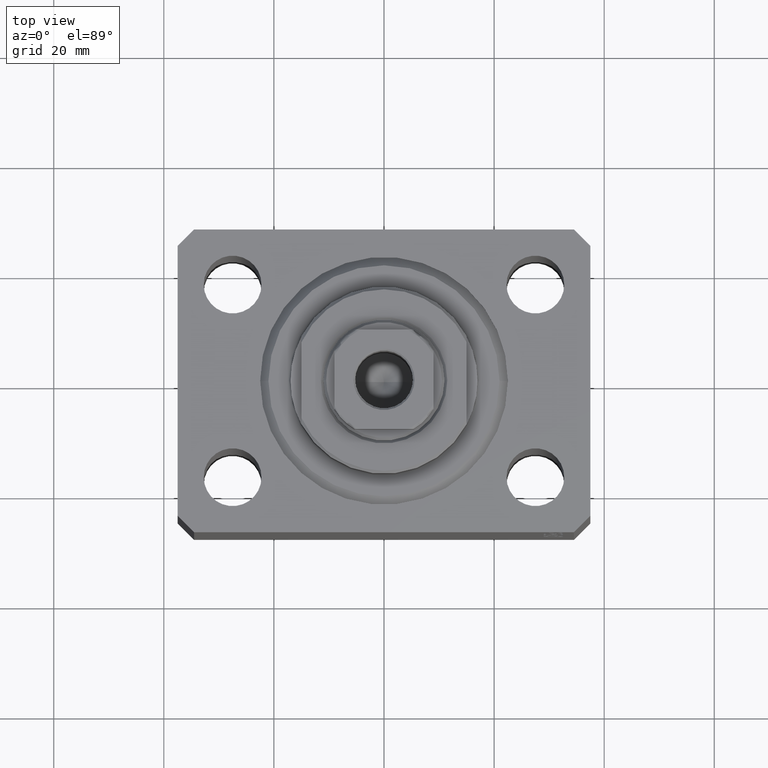
[diagram: clean part render]
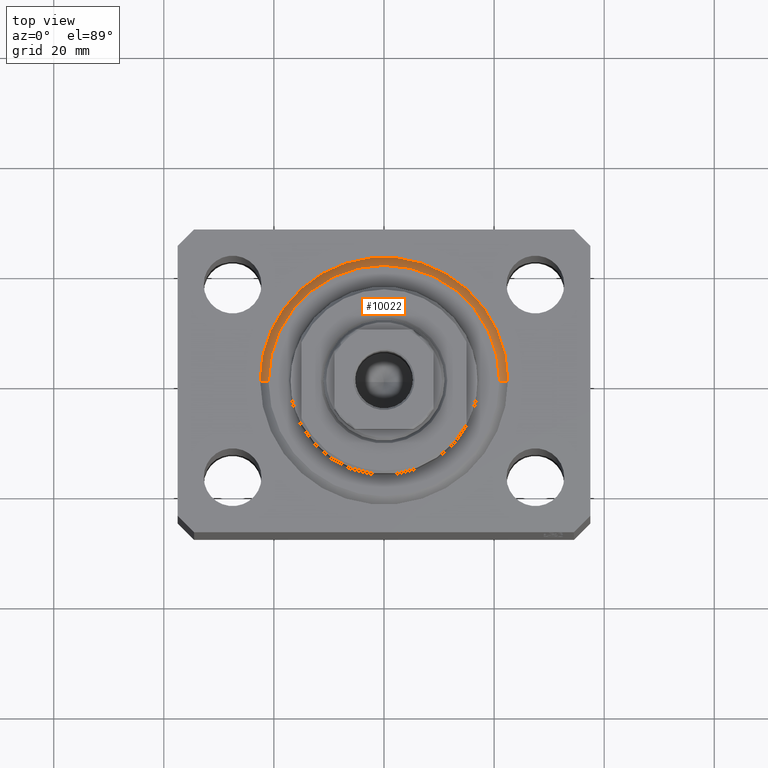
[diagram: same view with one face highlighted and labeled with its STEP entity id]
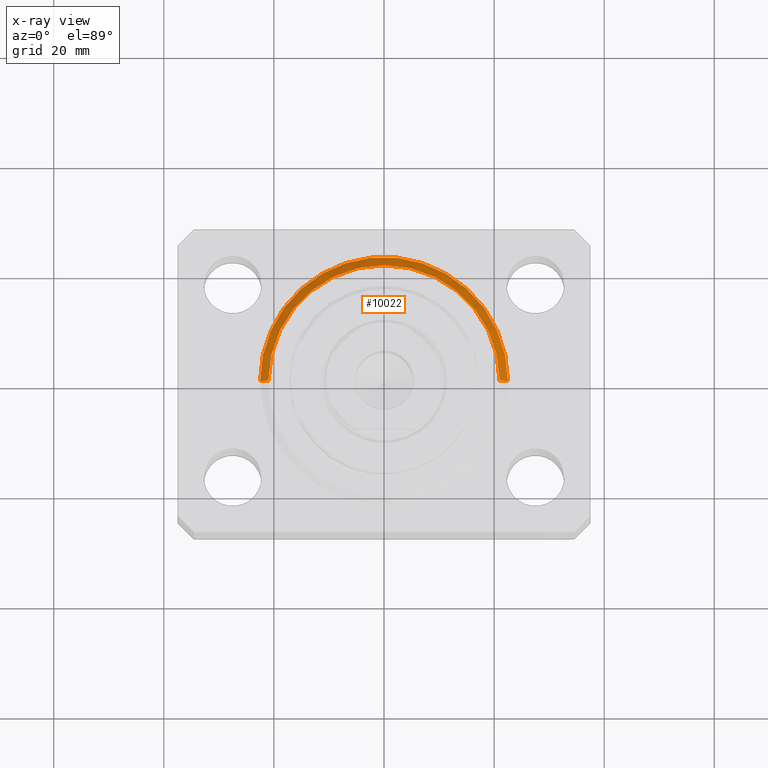
[diagram: x-ray of the same camera — body ghosted, the highlighted face saturated]
A machine part, top view. The second image highlights one B-rep face of the part: STEP entity #10022.
The next image is the same camera in x-ray: the body ghosted, the highlighted face saturated — about 0% of this face is hidden behind the body in this view.
In plain terms, the highlighted conical surface has half-angle 45 deg.
Its self-contained STEP definition (entity closure, byte-faithful):
#2380 = ORIENTED_EDGE ( 'NONE', *, *, #17753, .F. ) ;
#2679 = CONICAL_SURFACE ( 'NONE', #5552, 22.50000000000000355, 0.7853981633974517207 ) ;
#3330 = DIRECTION ( 'NONE',  ( -0.000000000000000000, -0.000000000000000000, 1.000000000000000000 ) ) ;
#3647 = EDGE_LOOP ( 'NONE', ( #25779, #8828, #2380, #43855 ) ) ;
#4254 = AXIS2_PLACEMENT_3D ( 'NONE', #34115, #3330, #20320 ) ;
#4304 = VECTOR ( 'NONE', #16313, 1000.000000000000114 ) ;
#5437 = LINE ( 'NONE', #22416, #4304 ) ;
#5552 = AXIS2_PLACEMENT_3D ( 'NONE', #5619, #16500, #26218 ) ;
#5619 = CARTESIAN_POINT ( 'NONE',  ( 0.000000000000000000, 0.000000000000000000, 1.500000000000039524 ) ) ;
#7337 = DIRECTION ( 'NONE',  ( -0.000000000000000000, -0.000000000000000000, -1.000000000000000000 ) ) ;
#7750 = CARTESIAN_POINT ( 'NONE',  ( 22.50000000000000355, 2.755455298081544383E-15, 1.500000000000039524 ) ) ;
#8828 = ORIENTED_EDGE ( 'NONE', *, *, #18240, .T. ) ;
#10022 = ADVANCED_FACE ( 'NONE', ( #12407 ), #2679, .T. ) ;
#10687 = DIRECTION ( 'NONE',  ( -0.7071067811865500152, 8.659560562354962440E-17, 0.7071067811865451302 ) ) ;
#11168 = CARTESIAN_POINT ( 'NONE',  ( 0.000000000000000000, 0.000000000000000000, 0.000000000000000000 ) ) ;
#12407 = FACE_OUTER_BOUND ( 'NONE', #3647, .T. ) ;
#14961 = LINE ( 'NONE', #35544, #26722 ) ;
#15500 = VERTEX_POINT ( 'NONE', #7750 ) ;
#16037 = CIRCLE ( 'NONE', #43472, 20.99999999999995381 ) ;
#16313 = DIRECTION ( 'NONE',  ( 0.7071067811865500152, 0.000000000000000000, 0.7071067811865451302 ) ) ;
#16500 = DIRECTION ( 'NONE',  ( -0.000000000000000000, -0.000000000000000000, 1.000000000000000000 ) ) ;
#17753 = EDGE_CURVE ( 'NONE', #15500, #32531, #28140, .T. ) ;
#18240 = EDGE_CURVE ( 'NONE', #42078, #32531, #14961, .T. ) ;
#19890 = VERTEX_POINT ( 'NONE', #22989 ) ;
#20320 = DIRECTION ( 'NONE',  ( 1.000000000000000000, 0.000000000000000000, 0.000000000000000000 ) ) ;
#21140 = DIRECTION ( 'NONE',  ( 1.000000000000000000, 0.000000000000000000, 0.000000000000000000 ) ) ;
#22416 = CARTESIAN_POINT ( 'NONE',  ( 22.50000000000000355, 0.000000000000000000, 1.500000000000039524 ) ) ;
#22989 = CARTESIAN_POINT ( 'NONE',  ( 20.99999999999995381, 0.000000000000000000, 0.000000000000000000 ) ) ;
#25171 = EDGE_CURVE ( 'NONE', #42078, #19890, #16037, .T. ) ;
#25779 = ORIENTED_EDGE ( 'NONE', *, *, #25171, .F. ) ;
#26218 = DIRECTION ( 'NONE',  ( 1.000000000000000000, 0.000000000000000000, 0.000000000000000000 ) ) ;
#26722 = VECTOR ( 'NONE', #10687, 1000.000000000000114 ) ;
#28140 = CIRCLE ( 'NONE', #4254, 22.50000000000000355 ) ;
#32313 = CARTESIAN_POINT ( 'NONE',  ( -20.99999999999995381, 2.663606788145490261E-15, 0.000000000000000000 ) ) ;
#32531 = VERTEX_POINT ( 'NONE', #43892 ) ;
#34115 = CARTESIAN_POINT ( 'NONE',  ( 0.000000000000000000, 0.000000000000000000, 1.500000000000039524 ) ) ;
#35544 = CARTESIAN_POINT ( 'NONE',  ( -22.50000000000000355, 2.755455298081545172E-15, 1.500000000000039524 ) ) ;
#42078 = VERTEX_POINT ( 'NONE', #32313 ) ;
#42727 = EDGE_CURVE ( 'NONE', #19890, #15500, #5437, .T. ) ;
#43472 = AXIS2_PLACEMENT_3D ( 'NONE', #11168, #7337, #21140 ) ;
#43855 = ORIENTED_EDGE ( 'NONE', *, *, #42727, .F. ) ;
#43892 = CARTESIAN_POINT ( 'NONE',  ( -22.50000000000000355, 0.000000000000000000, 1.500000000000039524 ) ) ;